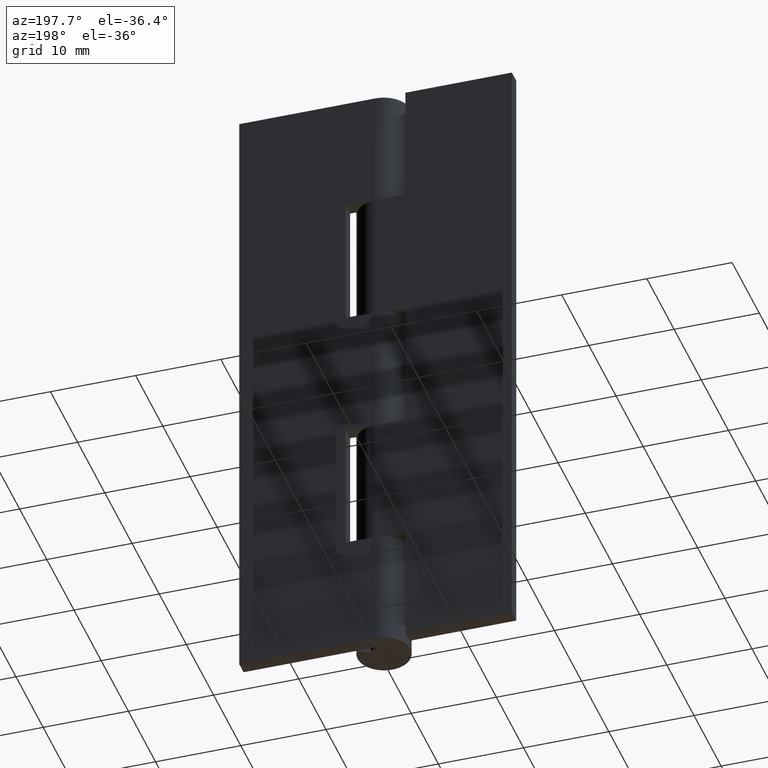
[diagram: clean part render]
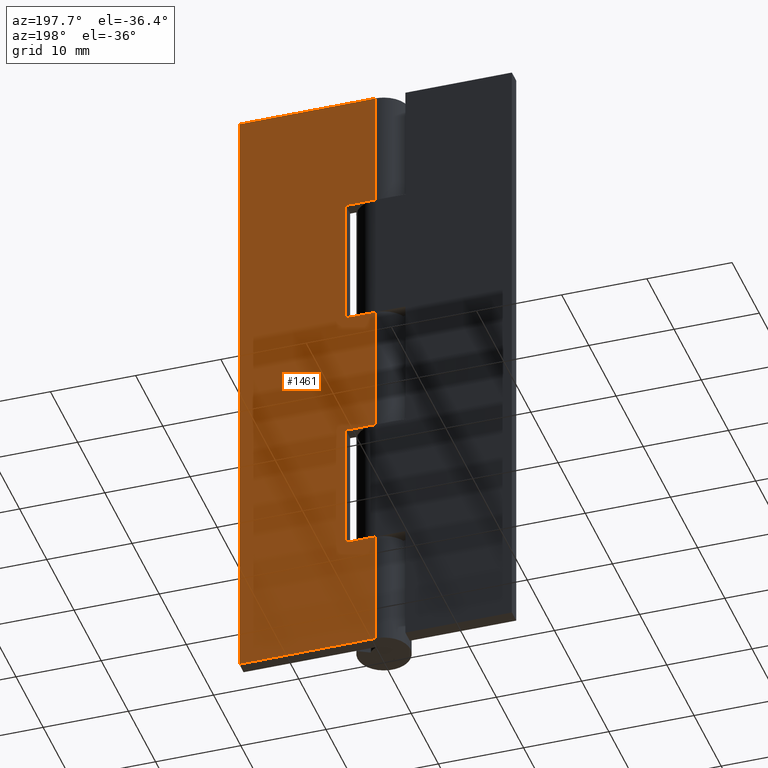
[diagram: same view with one face highlighted and labeled with its STEP entity id]
A machine part, auxiliary view. The second image highlights one B-rep face of the part: STEP entity #1461.
In plain terms, the highlighted face is a freeform B-spline surface patch.
Its self-contained STEP definition (entity closure, byte-faithful):
#798=CARTESIAN_POINT('',(0.003521362805220,3.099998000000000,29.699997000000000));
#799=VERTEX_POINT('',#798);
#807=CARTESIAN_POINT('',(3.499999999999901,3.099998000000050,29.699997000000000));
#808=VERTEX_POINT('',#807);
#809=CARTESIAN_POINT('',(3.499999999999901,3.099998000000050,29.699997000000000));
#810=CARTESIAN_POINT('',(0.003521362805220,3.099998000000000,29.699997000000000));
#811=QUASI_UNIFORM_CURVE('',1,(#809,#810),.UNSPECIFIED.,.F.,.U.);
#812=EDGE_CURVE('',#808,#799,#811,.T.);
#941=CARTESIAN_POINT('',(3.499999999999901,3.099998000000050,14.100006000000100));
#942=VERTEX_POINT('',#941);
#948=CARTESIAN_POINT('',(0.003521362805220,3.099998000000000,14.100006000000100));
#949=VERTEX_POINT('',#948);
#950=CARTESIAN_POINT('',(0.003521362805220,3.099998000000000,14.100006000000100));
#951=CARTESIAN_POINT('',(3.499999999999901,3.099998000000050,14.100006000000100));
#952=QUASI_UNIFORM_CURVE('',1,(#950,#951),.UNSPECIFIED.,.F.,.U.);
#953=EDGE_CURVE('',#949,#942,#952,.T.);
#969=CARTESIAN_POINT('',(3.499999999999901,3.099998000000050,14.100006000000100));
#970=CARTESIAN_POINT('',(3.499999999999901,3.099998000000050,29.699997000000000));
#971=QUASI_UNIFORM_CURVE('',1,(#969,#970),.UNSPECIFIED.,.F.,.U.);
#972=EDGE_CURVE('',#942,#808,#971,.T.);
#1046=CARTESIAN_POINT('',(3.499999999999901,3.099998000000050,45.300002999999997));
#1047=VERTEX_POINT('',#1046);
#1053=CARTESIAN_POINT('',(0.003521362805220,3.099998000000000,45.300002999999997));
#1054=VERTEX_POINT('',#1053);
#1055=CARTESIAN_POINT('',(3.499999999999901,3.099998000000050,45.300002999999997));
#1056=CARTESIAN_POINT('',(0.003521362805220,3.099998000000000,45.300002999999997));
#1057=QUASI_UNIFORM_CURVE('',1,(#1055,#1056),.UNSPECIFIED.,.F.,.U.);
#1058=EDGE_CURVE('',#1047,#1054,#1057,.T.);
#1075=CARTESIAN_POINT('',(0.003521362805220,3.099998000000000,60.899993999999893));
#1076=VERTEX_POINT('',#1075);
#1082=CARTESIAN_POINT('',(3.499999999999901,3.099998000000050,60.899993999999893));
#1083=VERTEX_POINT('',#1082);
#1084=CARTESIAN_POINT('',(0.003521362805220,3.099998000000000,60.899993999999893));
#1085=CARTESIAN_POINT('',(3.499999999999901,3.099998000000050,60.899993999999893));
#1086=QUASI_UNIFORM_CURVE('',1,(#1084,#1085),.UNSPECIFIED.,.F.,.U.);
#1087=EDGE_CURVE('',#1076,#1083,#1086,.T.);
#1159=CARTESIAN_POINT('',(3.499999999999901,3.099998000000050,60.899993999999893));
#1160=CARTESIAN_POINT('',(3.499999999999901,3.099998000000050,45.300002999999997));
#1161=QUASI_UNIFORM_CURVE('',1,(#1159,#1160),.UNSPECIFIED.,.F.,.U.);
#1162=EDGE_CURVE('',#1083,#1047,#1161,.T.);
#1180=CARTESIAN_POINT('',(0.003521362805220,3.099998000000000,75.0));
#1181=VERTEX_POINT('',#1180);
#1236=CARTESIAN_POINT('',(16.0,3.099998000000000,75.0));
#1237=VERTEX_POINT('',#1236);
#1243=CARTESIAN_POINT('',(0.003521362805220,3.099998000000000,75.0));
#1244=CARTESIAN_POINT('',(16.0,3.099998000000000,75.0));
#1245=QUASI_UNIFORM_CURVE('',1,(#1243,#1244),.UNSPECIFIED.,.F.,.U.);
#1246=EDGE_CURVE('',#1181,#1237,#1245,.T.);
#1258=CARTESIAN_POINT('',(0.003521362805220,3.099998000000000,0.0));
#1259=VERTEX_POINT('',#1258);
#1279=CARTESIAN_POINT('',(16.0,3.099998000000000,0.0));
#1280=VERTEX_POINT('',#1279);
#1281=CARTESIAN_POINT('',(0.003521362805220,3.099998000000000,0.0));
#1282=CARTESIAN_POINT('',(16.0,3.099998000000000,0.0));
#1283=QUASI_UNIFORM_CURVE('',1,(#1281,#1282),.UNSPECIFIED.,.F.,.U.);
#1284=EDGE_CURVE('',#1259,#1280,#1283,.T.);
#1422=CARTESIAN_POINT('',(16.0,3.099998000000000,0.0));
#1423=CARTESIAN_POINT('',(16.0,3.099998000000000,75.0));
#1424=QUASI_UNIFORM_CURVE('',1,(#1422,#1423),.UNSPECIFIED.,.F.,.U.);
#1425=EDGE_CURVE('',#1280,#1237,#1424,.T.);
#1430=CARTESIAN_POINT('',(-0.795502714118380,3.099998000000000,78.746249854635451));
#1431=CARTESIAN_POINT('',(-0.795502714118380,3.099998000000000,-3.746251866292208));
#1432=CARTESIAN_POINT('',(16.799024505982590,3.099998000000000,78.746249854635451));
#1433=CARTESIAN_POINT('',(16.799024505982590,3.099998000000000,-3.746251866292208));
#1434=B_SPLINE_SURFACE_WITH_KNOTS('',1,1,((#1430,#1432),(#1431,#1433)),.UNSPECIFIED.,.F.,.F.,.U.,(2,2),(2,2),(0.0,82.492501720927663),(0.0,17.594527220100971),.UNSPECIFIED.);
#1435=CARTESIAN_POINT('',(0.003521362805220,3.099998000000000,0.0));
#1436=CARTESIAN_POINT('',(0.003521362805220,3.099998000000000,14.100006000000100));
#1437=QUASI_UNIFORM_CURVE('',1,(#1435,#1436),.UNSPECIFIED.,.F.,.U.);
#1438=EDGE_CURVE('',#1259,#949,#1437,.T.);
#1439=ORIENTED_EDGE('',*,*,#1438,.T.);
#1440=ORIENTED_EDGE('',*,*,#953,.T.);
#1441=ORIENTED_EDGE('',*,*,#972,.T.);
#1442=ORIENTED_EDGE('',*,*,#812,.T.);
#1443=CARTESIAN_POINT('',(0.003521362805220,3.099998000000000,29.699997000000000));
#1444=CARTESIAN_POINT('',(0.003521362805220,3.099998000000000,45.300002999999997));
#1445=QUASI_UNIFORM_CURVE('',1,(#1443,#1444),.UNSPECIFIED.,.F.,.U.);
#1446=EDGE_CURVE('',#799,#1054,#1445,.T.);
#1447=ORIENTED_EDGE('',*,*,#1446,.T.);
#1448=ORIENTED_EDGE('',*,*,#1058,.F.);
#1449=ORIENTED_EDGE('',*,*,#1162,.F.);
#1450=ORIENTED_EDGE('',*,*,#1087,.F.);
#1451=CARTESIAN_POINT('',(0.003521362805220,3.099998000000000,60.899993999999893));
#1452=CARTESIAN_POINT('',(0.003521362805220,3.099998000000000,75.0));
#1453=QUASI_UNIFORM_CURVE('',1,(#1451,#1452),.UNSPECIFIED.,.F.,.U.);
#1454=EDGE_CURVE('',#1076,#1181,#1453,.T.);
#1455=ORIENTED_EDGE('',*,*,#1454,.T.);
#1456=ORIENTED_EDGE('',*,*,#1246,.T.);
#1457=ORIENTED_EDGE('',*,*,#1425,.F.);
#1458=ORIENTED_EDGE('',*,*,#1284,.F.);
#1459=EDGE_LOOP('',(#1439,#1440,#1441,#1442,#1447,#1448,#1449,#1450,#1455,#1456,#1457,#1458));
#1460=FACE_OUTER_BOUND('',#1459,.T.);
#1461=ADVANCED_FACE('',(#1460),#1434,.F.);